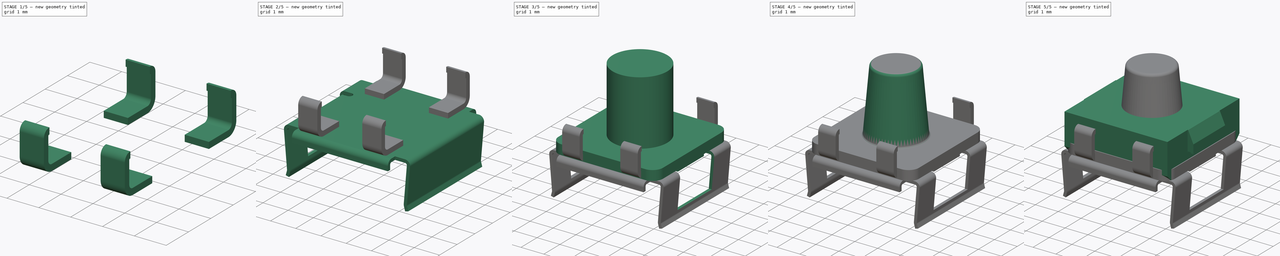
[diagram: build sequence overview — one tinted view per stage of 5, left to right]
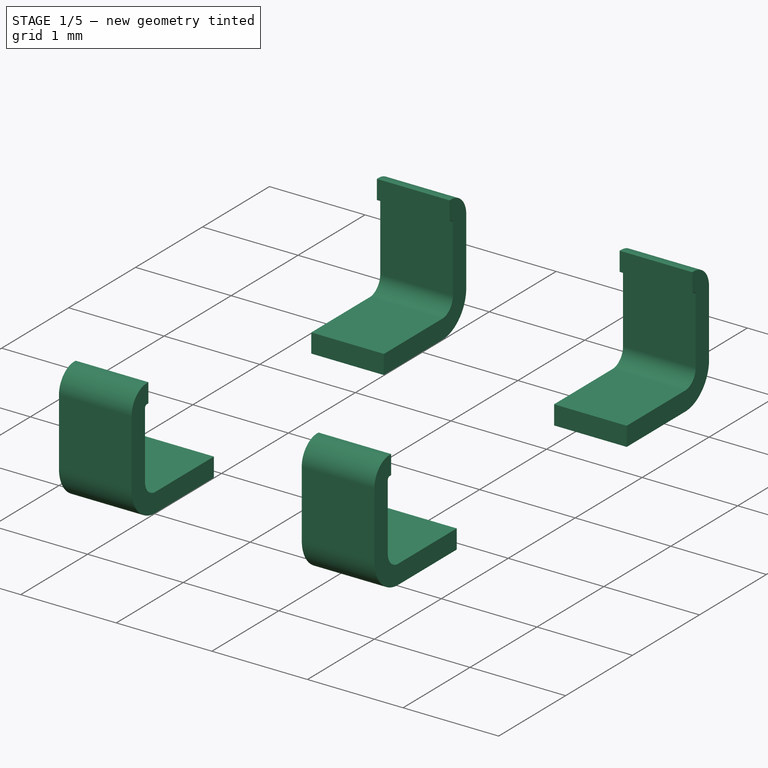
[diagram: stage 1 of 5 — iso view after this stage's code; geometry added in this stage tinted green]
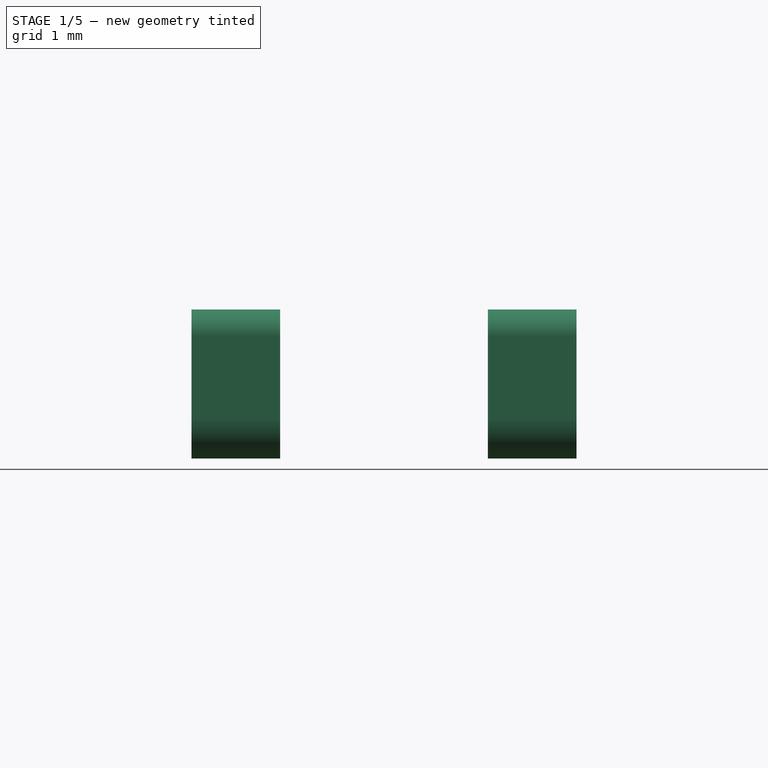
[diagram: stage 1 of 5 — front view after this stage's code; geometry added in this stage tinted green]
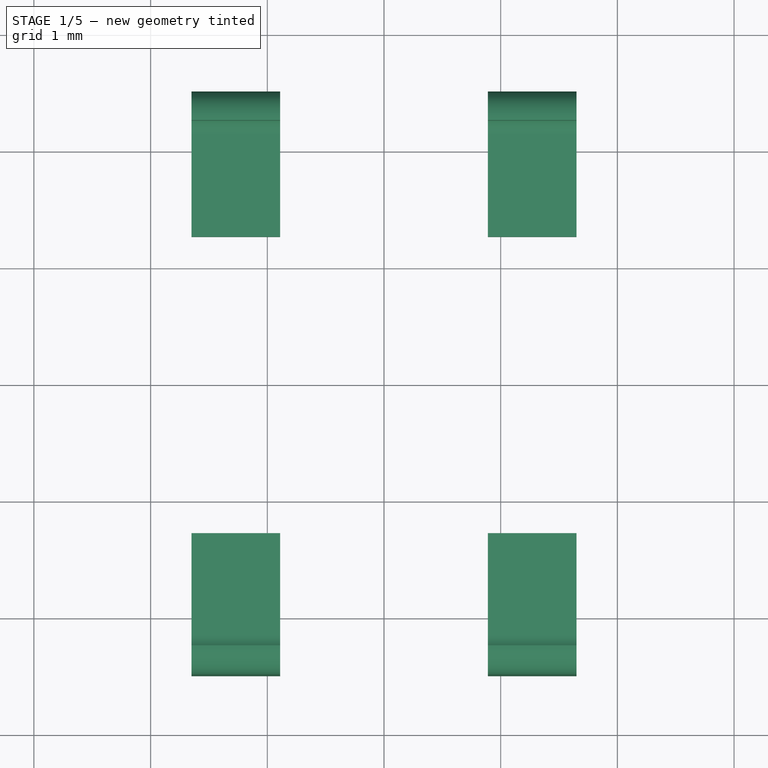
[diagram: stage 1 of 5 — top view after this stage's code; geometry added in this stage tinted green]
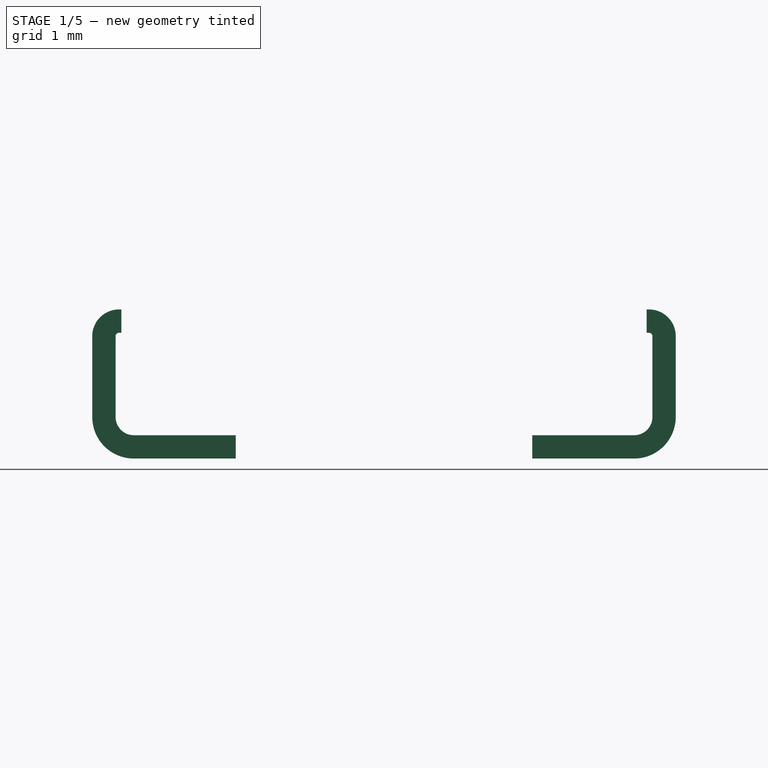
[diagram: stage 1 of 5 — right view after this stage's code; geometry added in this stage tinted green]
FCSTD DOCUMENT  (FreeCAD 1.0R38641 +468 (Git))
Label: 7914J-1-050
License: All rights reserved
LicenseURL: http://en.wikipedia.org/wiki/All_rights_reserved
objects: Sketcher::SketchObject×10, PartDesign::Pad×7, PartDesign::Body×4, PartDesign::Pocket×3, PartDesign::Mirrored×2, PartDesign::Fillet×2, Spreadsheet::Sheet×1, PartDesign::Draft×1, Part::FeaturePython×1, Part::Mirroring×1, Part::Compound×1
note: 69 computed .brp shape members not serialized (recipe doc carries the construction recipe); baked Part::Feature solids carry a one-line shape summary decoded from their .brp

FEATURE [PartDesign::Body] Body002  label="Cover"
  AllowCompound = false
  Group = -> [Sketch007,Pad004,Sketch008,Pad005,Sketch009,Pocket001,Mirrored001,Sketch010,Pocket002]
  Origin = -> Origin002
  Placement = pos=(0,0,2.54) rot=(0,0,1;0rad)
  Tip = -> Pocket002
FEATURE [Sketcher::SketchObject] Sketch011
  ArcFitTolerance = 0
  AttachmentSupport = -> [YZ_Plane003]
  FullyConstrained = true
  MakeInternals = false
  MapMode = 5
  Placement = pos=(0,0,0) rot=(0.57735,0.57735,0.57735;2.0944rad)
  expr: Constraints[50] = <<Master>>.body_y / 2
  expr: Constraints[53] = <<Master>>.dim_y / 2
  sketch-geometry (20):
    g0: LineSegment StartX=-1.27 StartY=0.2 StartZ=0 EndX=-1.27 EndY=6e-16 EndZ=0
    g1: LineSegment StartX=-1.27 StartY=6e-16 StartZ=0 EndX=-2.144 EndY=6e-16 EndZ=0
    g2: LineSegment StartX=-2.5 StartY=0.356 StartZ=0 EndX=-2.5 EndY=1.049 EndZ=0
    g3: LineSegment StartX=-2.2714 StartY=1.2776 StartZ=0 EndX=-2.25 EndY=1.2776 EndZ=0
    g4: LineSegment StartX=-2.25 StartY=1.2776 StartZ=0 EndX=-2.25 EndY=1.0776 EndZ=0
    g5: LineSegment StartX=-2.25 StartY=1.0776 StartZ=0 EndX=-2.2714 EndY=1.0776 EndZ=0
    g6: LineSegment StartX=-2.3 StartY=1.049 StartZ=0 EndX=-2.3 EndY=0.356 EndZ=0
    g7: LineSegment StartX=-2.144 StartY=0.2 StartZ=0 EndX=-1.27 EndY=0.2 EndZ=0
    g8: ArcOfCircle CenterX=-2.144 CenterY=0.356 CenterZ=0 NormalX=0 NormalY=0 NormalZ=1 AngleXU=0 Radius=0.356 StartAngle=3.14159 EndAngle=4.71239
    g9: ArcOfCircle CenterX=-2.144 CenterY=0.356 CenterZ=0 NormalX=0 NormalY=0 NormalZ=1 AngleXU=0 Radius=0.156 StartAngle=3.14159 EndAngle=4.71239
    g10: LineSegment [constr] StartX=-2.5 StartY=0.356 StartZ=0 EndX=-2.3 EndY=0.356 EndZ=0
    g11: LineSegment [constr] StartX=-2.144 StartY=0.2 StartZ=0 EndX=-2.144 EndY=6e-16 EndZ=0
    g12: ArcOfCircle CenterX=-2.2714 CenterY=1.049 CenterZ=0 NormalX=0 NormalY=0 NormalZ=1 AngleXU=0 Radius=0.2286 StartAngle=1.5708 EndAngle=3.14159
    g13: ArcOfCircle CenterX=-2.2714 CenterY=1.049 CenterZ=0 NormalX=0 NormalY=0 NormalZ=1 AngleXU=0 Radius=0.0286 StartAngle=1.5708 EndAngle=3.14159
    g14: LineSegment [constr] StartX=-2.2714 StartY=1.2776 StartZ=0 EndX=-2.2714 EndY=1.0776 EndZ=0
    g15: LineSegment [constr] StartX=-2.5 StartY=1.049 StartZ=0 EndX=-2.3 EndY=1.049 EndZ=0
    g16: LineSegment [constr] StartX=-2.3 StartY=0.356 StartZ=0 EndX=-2.144 EndY=0.356 EndZ=0
    g17: LineSegment [constr] StartX=-2.144 StartY=0.356 StartZ=0 EndX=-2.144 EndY=0.2 EndZ=0
    g18: LineSegment [constr] StartX=-2.3 StartY=1.049 StartZ=0 EndX=-2.2714 EndY=1.049 EndZ=0
    g19: LineSegment [constr] StartX=-2.2714 StartY=1.0776 StartZ=0 EndX=-2.2714 EndY=1.049 EndZ=0
  constraints (54):
    c: Vertical(g0)
    c: Coincident(g0,g1)
    c: Horizontal(g1)
    c: Vertical(g2)
    c: Horizontal(g3)
    c: Coincident(g3,g4)
    c: Vertical(g4)
    c: Coincident(g4,g5)
    c: Horizontal(g5)
    c: Vertical(g6)
    c: Horizontal(g7)
    c: Coincident(g0,g7)
    c: PointOnObject(g0,g-1)
    c: Coincident(g2,g8)
    c: Coincident(g1,g8)
    c: Coincident(g6,g9)
    c: Coincident(g7,g9)
    c: Coincident(g9,g8)
    c: Coincident(g10,g6)
    c: Horizontal(g10)
    c: Coincident(g11,g7)
    c: Coincident(g11,g1)
    c: Vertical(g11)
    c: Coincident(g2,g10)
    c: Coincident(g3,g12)
    c: Coincident(g2,g12)
    c: Coincident(g6,g13)
    c: Coincident(g5,g13)
    c: Coincident(g13,g12)
    c: Coincident(g14,g3)
    c: Coincident(g14,g5)
    c: Vertical(g14)
    c: Coincident(g15,g2)
    c: Coincident(g15,g6)
    c: Horizontal(g15)
    c: Coincident(g16,g6)
    c: Coincident(g16,g8)
    c: Horizontal(g16)
    c: Coincident(g17,g8)
    c: Coincident(g17,g7)
    c: Vertical(g17)
    c: Coincident(g18,g6)
    c: Coincident(g18,g12)
    c: Horizontal(g18)
    c: Coincident(g19,g5)
    c: Coincident(g19,g12)
    c: Vertical(g19)
    c: DistanceY(g2) = 0.693
    c: DistanceY(g2,g3) = 0.2286
    c: DistanceX(g2,g0) = 1.23
    c: DistanceX(g3,g-1) = 2.25
    c: DistanceY(g4,g4) = 0.2
    c: DistanceY(g1,g2) = 0.356
    c: DistanceX(g2,g-1) = 2.5
FEATURE [PartDesign::Pad] Pad006
  Direction = (1,0,0)
  Length = 0.38
  Length2 = 0.38
  Placement = pos=(0,0,0) rot=(1,1,1;2.0944rad)
  Profile = -> Sketch011
  ReferenceAxis = -> Sketch011 [N_Axis]
  Suppressed = false
  Type = 4
FEATURE [PartDesign::Body] Body003
  AllowCompound = false
  Group = -> [Sketch011,Pad006]
  Origin = -> Origin003
  Tip = -> Pad006
FEATURE [Part::FeaturePython] Array  # Draft array (typed FeaturePython)
  AlwaysSyncPlacement = false
  Angle = 360
  ArrayType = 0
  Axis = (0,0,1)
  Base = -> Body003
  Center = (0,0,0)
  Count = 2
  ExpandArray = false
  Fuse = false
  IntervalAxis = (0,0,0)
  IntervalX = (2.54,0,0)
  IntervalY = (0,100,0)
  IntervalZ = (0,0,100)
  NumberCircles = 3
  NumberPolar = 5
  NumberX = 2
  NumberY = 1
  NumberZ = 1
  Placement = pos=(-1.27,0,0) rot=(0,0,1;0rad)
  PlacementList = 2 placements: [(0,0,0),(2.54,0,0)]
  RadialDistance = 50
  ScaleList = (2) [(1,1,1),(1,1,1)]
  Symmetry = 1
  TangentialDistance = 25
FEATURE [Part::Mirroring] Part__Mirroring  label="Array (Mirror #1)"
  Base = (0,0,0)
  Normal = (0,1,0)
  Source = -> Array
FEATURE [Part::Compound] Compound
  Links = -> [Part__Mirroring,Array]
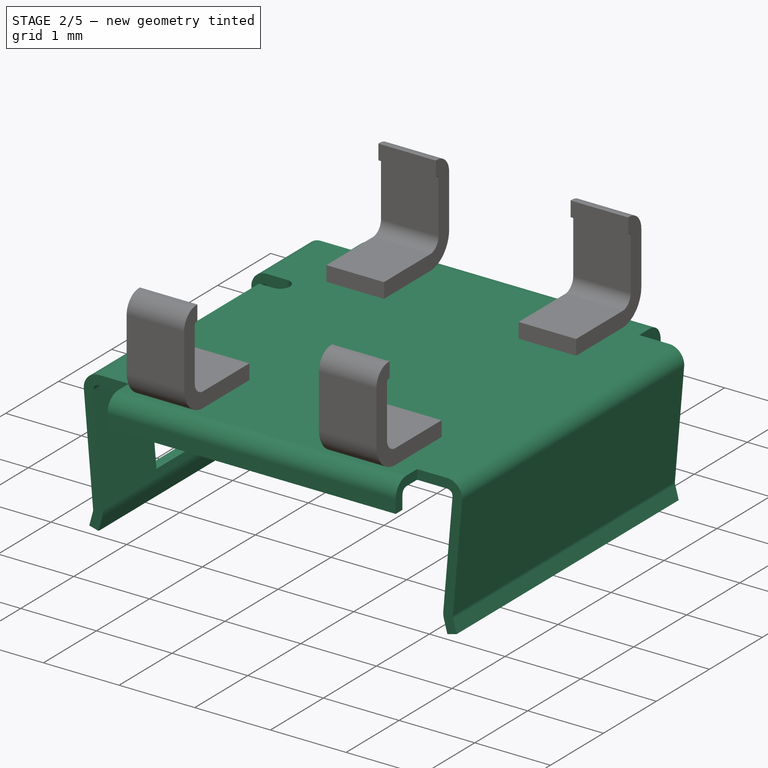
[diagram: stage 2 of 5 — iso view after this stage's code; geometry added in this stage tinted green]
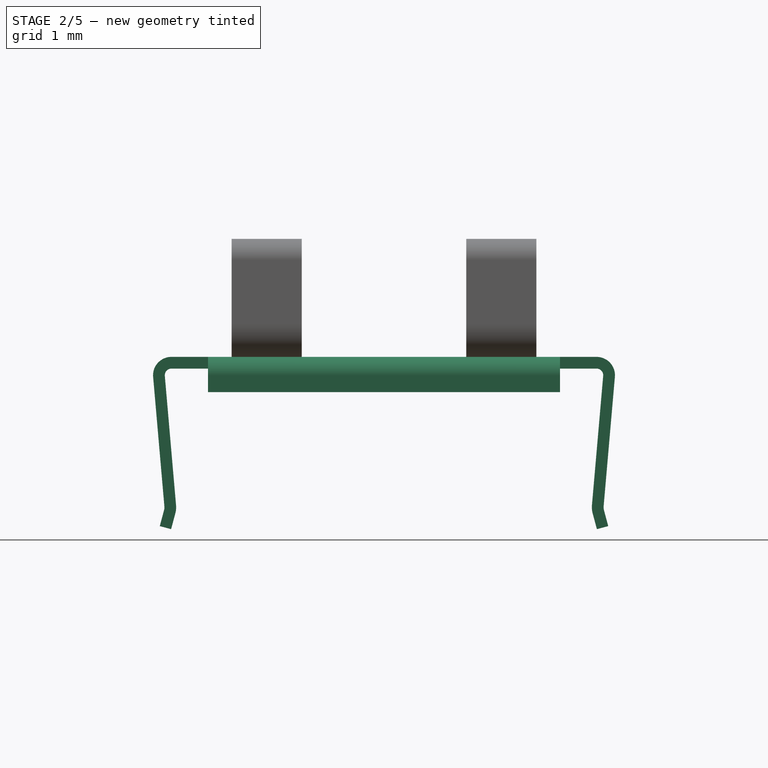
[diagram: stage 2 of 5 — front view after this stage's code; geometry added in this stage tinted green]
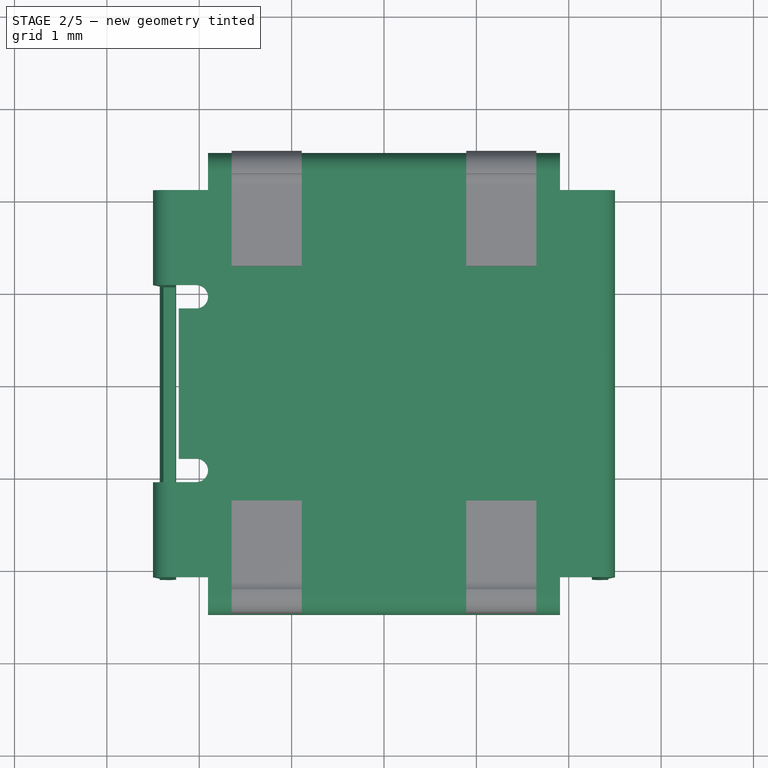
[diagram: stage 2 of 5 — top view after this stage's code; geometry added in this stage tinted green]
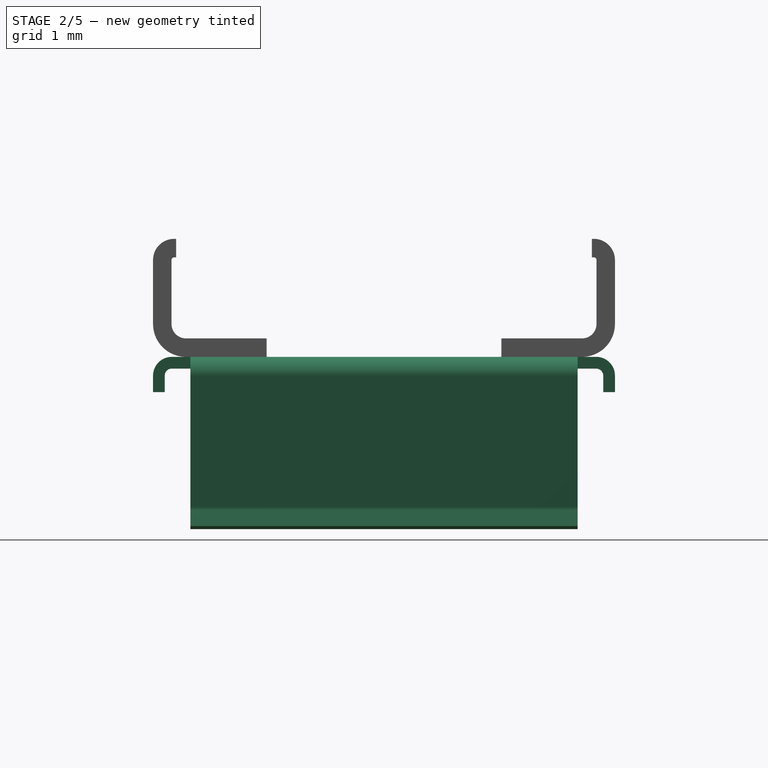
[diagram: stage 2 of 5 — right view after this stage's code; geometry added in this stage tinted green]
FEATURE [PartDesign::Body] Body001  label="Button"
  AllowCompound = false
  Group = -> [Sketch003,Pad002,Sketch004,Pad003,Draft,Fillet,Fillet001]
  Origin = -> Origin001
  Placement = pos=(0,0,1.887) rot=(0,0,1;0rad)
  Tip = -> Fillet001
FEATURE [Sketcher::SketchObject] Sketch007
  ArcFitTolerance = 0
  AttachmentSupport = -> [XZ_Plane002]
  FullyConstrained = true
  MakeInternals = false
  MapMode = 5
  Placement = pos=(0,0,0) rot=(1,0,0;1.5708rad)
  expr: Constraints[42] = <<Master>>.cover_thick
  expr: Constraints[65] = <<Master>>.body_x
  expr: Constraints[78] = <<Master>>.dim_x
  sketch-geometry (31):
    g0: LineSegment StartX=-2.25095 StartY=-1.60607 StartZ=0 EndX=-2.37273 EndY=-0.205003 EndZ=0
    g1: LineSegment StartX=-2.30121 StartY=-0.127 StartZ=0 EndX=2.30121 EndY=-0.127 EndZ=0
    g2: LineSegment StartX=2.37273 StartY=-0.205001 StartZ=0 EndX=2.25095 EndY=-1.60607 EndZ=0
    g3: LineSegment StartX=2.37748 StartY=-1.61706 StartZ=0 EndX=2.49925 EndY=-0.215998 EndZ=0
    g4: LineSegment StartX=2.30121 StartY=0 StartZ=0 EndX=-2.30121 EndY=0 EndZ=0
    g5: LineSegment StartX=-2.49925 StartY=-0.216 StartZ=0 EndX=-2.37748 EndY=-1.61706 EndZ=0
    g6: LineSegment StartX=-2.38135 StartY=-1.661 StartZ=0 EndX=-2.42727 EndY=-1.832 EndZ=0
    g7: LineSegment StartX=-2.42727 StartY=-1.832 StartZ=0 EndX=-2.30462 EndY=-1.86494 EndZ=0
    g8: LineSegment StartX=-2.30462 StartY=-1.86494 StartZ=0 EndX=-2.25869 EndY=-1.69394 EndZ=0
    g9: LineSegment StartX=2.25869 StartY=-1.69394 StartZ=0 EndX=2.30462 EndY=-1.86494 EndZ=0
    g10: LineSegment StartX=2.30462 StartY=-1.86494 StartZ=0 EndX=2.42727 EndY=-1.832 EndZ=0
    g11: LineSegment StartX=2.42727 StartY=-1.832 StartZ=0 EndX=2.38135 EndY=-1.661 EndZ=0
    g12: ArcOfCircle CenterX=-2.30121 CenterY=-0.198786 CenterZ=0 NormalX=0 NormalY=0 NormalZ=1 AngleXU=0 Radius=0.198786 StartAngle=1.5708 EndAngle=3.2283
    g13: ArcOfCircle CenterX=-2.30121 CenterY=-0.198786 CenterZ=0 NormalX=0 NormalY=0 NormalZ=1 AngleXU=0 Radius=0.071786 StartAngle=1.57081 EndAngle=3.22831
    g14: ArcOfCircle CenterX=2.30121 CenterY=-0.198786 CenterZ=0 NormalX=0 NormalY=0 NormalZ=1 AngleXU=0 Radius=0.198786 StartAngle=6.19649 EndAngle=7.85398
    g15: ArcOfCircle CenterX=2.30121 CenterY=-0.198786 CenterZ=0 NormalX=0 NormalY=0 NormalZ=1 AngleXU=0 Radius=0.071786 StartAngle=6.1965 EndAngle=7.85397
    g16: LineSegment [constr] StartX=-2.49925 StartY=-0.216 StartZ=0 EndX=-2.37273 EndY=-0.205003 EndZ=0
    g17: LineSegment [constr] StartX=-2.30121 StartY=0 StartZ=0 EndX=-2.30121 EndY=-0.127 EndZ=0
    g18: LineSegment [constr] StartX=2.30121 StartY=0 StartZ=0 EndX=2.30121 EndY=-0.127 EndZ=0
    g19: LineSegment [constr] StartX=2.37273 StartY=-0.205001 StartZ=0 EndX=2.49925 EndY=-0.215998 EndZ=0
    g20: LineSegment [constr] StartX=-2.30462 StartY=-1.86494 StartZ=0 EndX=2.30462 EndY=-1.86494 EndZ=0
    g21: LineSegment [constr] StartX=-2.30121 StartY=-0.198786 StartZ=0 EndX=2.30121 EndY=-0.198786 EndZ=0
    g22: ArcOfCircle CenterX=2.504 CenterY=-1.62806 CenterZ=0 NormalX=0 NormalY=0 NormalZ=1 AngleXU=0 Radius=0.254 StartAngle=3.05489 EndAngle=3.40396
    g23: ArcOfCircle CenterX=2.504 CenterY=-1.62806 CenterZ=0 NormalX=0 NormalY=0 NormalZ=1 AngleXU=0 Radius=0.127 StartAngle=3.05489 EndAngle=3.40396
    g24: ArcOfCircle CenterX=-2.504 CenterY=-1.62806 CenterZ=0 NormalX=0 NormalY=0 NormalZ=1 AngleXU=0 Radius=0.127 StartAngle=6.02082 EndAngle=6.36988
    g25: ArcOfCircle CenterX=-2.504 CenterY=-1.62806 CenterZ=0 NormalX=0 NormalY=0 NormalZ=1 AngleXU=0 Radius=0.254 StartAngle=6.02082 EndAngle=6.36988
    g26: LineSegment [constr] StartX=2.25 StartY=-1.62806 StartZ=0 EndX=2.25 EndY=-1.86494 EndZ=0
    g27: LineSegment [constr] StartX=-2.25 StartY=-1.62806 StartZ=0 EndX=-2.25 EndY=-1.86494 EndZ=0
    g28: LineSegment [constr] StartX=2.504 StartY=-1.62806 StartZ=0 EndX=-2.504 EndY=-1.62806 EndZ=0
    g29: LineSegment [constr] StartX=-2.5 StartY=0 StartZ=0 EndX=-2.5 EndY=-0.198786 EndZ=0
    g30: LineSegment [constr] StartX=2.5 StartY=-0.198786 StartZ=0 EndX=2.5 EndY=0 EndZ=0
  constraints (80):
    c: Horizontal(g1)
    c: Horizontal(g4)
    c: Coincident(g6,g7)
    c: Coincident(g7,g8)
    c: Coincident(g9,g10)
    c: Coincident(g10,g11)
    c: Parallel(g0,g5)
    c: Parallel(g6,g8)
    c: Perpendicular(g8,g7)
    c: Parallel(g2,g3)
    c: Parallel(g9,g11)
    c: Perpendicular(g9,g10)
    c: Coincident(g13,g12)
    c: Coincident(g4,g12)
    c: Coincident(g5,g12)
    c: Coincident(g0,g13)
    c: Coincident(g1,g13)
    c: Coincident(g15,g14)
    c: Coincident(g4,g14)
    c: Coincident(g3,g14)
    c: Coincident(g1,g15)
    c: Coincident(g2,g15)
    c: Coincident(g16,g5)
    c: Coincident(g16,g0)
    c: Perpendicular(g0,g16)
    c: Tangent(g5,g12)
    c: Coincident(g17,g4)
    c: Coincident(g17,g1)
    c: Vertical(g17)
    c: Coincident(g18,g4)
    c: Coincident(g18,g1)
    c: Vertical(g18)
    c: Coincident(g19,g2)
    c: Coincident(g19,g3)
    c: Tangent(g14,g3)
    c: Equal(g10,g19)
    c: Coincident(g20,g7)
    c: Coincident(g20,g9)
    c: Coincident(g21,g12)
    c: Coincident(g21,g14)
    c: Symmetric(g7,g9,g-2)
    c: DistanceY(g5,g4) = 0.216
    c: DistanceY(g17,g17) = 0.127
    c: DistanceY(g10,g4) = 1.832
    c: Tangent(g2,g22) = -1.5708
    c: Tangent(g9,g22) = -1.5708
    c: Tangent(g3,g23) = 1.5708
    c: Tangent(g11,g23) = 1.5708
    c: Tangent(g6,g24) = 1.5708
    c: Tangent(g5,g24) = 1.5708
    c: Tangent(g8,g25) = -1.5708
    c: Tangent(g0,g25) = -1.5708
    c: Coincident(g25,g24)
    c: Coincident(g22,g23)
    c: PointOnObject(g26,g20)
    c: Vertical(g26)
    c: Tangent(g26,g22) = -1.5708
    c: PointOnObject(g27,g20)
    c: Vertical(g27)
    c: Tangent(g27,g25) = 1.5708
    c: Angle(g5,g6) = 2.79253
    c: Angle(g11,g3) = 2.79253
    c: Coincident(g28,g22)
    c: Coincident(g28,g24)
    c: Horizontal(g28)
    c: DistanceX(g27,g26) = 4.5
    c: Equal(g25,g22)
    c: PointOnObject(g-1,g4)
    c: Equal(g16,g17)
    c: Radius(g25) = 0.254
    c: DistanceY(g27,g8) = 0.171
    c: Equal(g10,g7)
    c: PointOnObject(g29,g-1)
    c: Vertical(g29)
    c: PointOnObject(g30,g-1)
    c: Vertical(g30)
    c: Tangent(g30,g14) = -1.5708
    c: Tangent(g29,g12) = -1.5708
    c: DistanceX(g29,g30) = 5
    c: Symmetric(g12,g14,g-2)
FEATURE [PartDesign::Pad] Pad004
  Direction = (0,-1,2e-16)
  Length = 2.0955
  Length2 = 2.0955
  Placement = pos=(0,0,0) rot=(1,0,0;1.5708rad)
  Profile = -> Sketch007
  ReferenceAxis = -> Sketch007 [N_Axis]
  Suppressed = false
  Type = 4
  expr: Length = <<Master>>.cover_y / 2
  expr: Length2 = <<Master>>.cover_y / 2
FEATURE [Sketcher::SketchObject] Sketch008
  ArcFitTolerance = 0
  AttachmentSupport = -> [YZ_Plane002]
  FullyConstrained = true
  MakeInternals = false
  MapMode = 5
  Placement = pos=(0,0,0) rot=(0.57735,0.57735,0.57735;2.0944rad)
  expr: Constraints[30] = <<Master>>.cover_thick
  expr: Constraints[34] = <<Master>>.dim_y
  sketch-geometry (15):
    g0: LineSegment StartX=2.297 StartY=0 StartZ=0 EndX=-2.297 EndY=0 EndZ=0
    g1: LineSegment StartX=-2.5 StartY=-0.203 StartZ=0 EndX=-2.5 EndY=-0.381 EndZ=0
    g2: LineSegment StartX=-2.5 StartY=-0.381 StartZ=0 EndX=-2.373 EndY=-0.381 EndZ=0
    g3: LineSegment StartX=-2.373 StartY=-0.381 StartZ=0 EndX=-2.373 EndY=-0.203 EndZ=0
    g4: LineSegment StartX=-2.297 StartY=-0.127 StartZ=0 EndX=2.297 EndY=-0.127 EndZ=0
    g5: LineSegment StartX=2.373 StartY=-0.203 StartZ=0 EndX=2.373 EndY=-0.381 EndZ=0
    g6: LineSegment StartX=2.373 StartY=-0.381 StartZ=0 EndX=2.5 EndY=-0.381 EndZ=0
    g7: LineSegment StartX=2.5 StartY=-0.381 StartZ=0 EndX=2.5 EndY=-0.203 EndZ=0
    g8: ArcOfCircle CenterX=-2.297 CenterY=-0.203 CenterZ=0 NormalX=0 NormalY=0 NormalZ=1 AngleXU=0 Radius=0.203 StartAngle=1.5708 EndAngle=3.14159
    g9: ArcOfCircle CenterX=-2.297 CenterY=-0.203 CenterZ=0 NormalX=0 NormalY=0 NormalZ=1 AngleXU=0 Radius=0.076 StartAngle=1.5708 EndAngle=3.14159
    g10: ArcOfCircle CenterX=2.297 CenterY=-0.203 CenterZ=0 NormalX=0 NormalY=0 NormalZ=1 AngleXU=0 Radius=0.203 StartAngle=0 EndAngle=1.5708
    g11: ArcOfCircle CenterX=2.297 CenterY=-0.203 CenterZ=0 NormalX=0 NormalY=0 NormalZ=1 AngleXU=0 Radius=0.076 StartAngle=0 EndAngle=1.5708
    g12: LineSegment [constr] StartX=-2.297 StartY=0 StartZ=0 EndX=-2.297 EndY=-0.127 EndZ=0
    g13: LineSegment [constr] StartX=-2.297 StartY=-0.203 StartZ=0 EndX=2.297 EndY=-0.203 EndZ=0
    g14: LineSegment [constr] StartX=2.373 StartY=-0.381 StartZ=0 EndX=-2.373 EndY=-0.381 EndZ=0
  constraints (35):
    c: Horizontal(g0)
    c: Coincident(g1,g2)
    c: Coincident(g2,g3)
    c: Horizontal(g4)
    c: Vertical(g5)
    c: Coincident(g5,g6)
    c: Horizontal(g6)
    c: Coincident(g6,g7)
    c: Vertical(g1)
    c: Vertical(g3)
    c: Vertical(g7)
    c: Horizontal(g2)
    c: Tangent(g0,g8) = -1.5708
    c: Tangent(g1,g8) = -1.5708
    c: Tangent(g4,g9) = 1.5708
    c: Tangent(g3,g9) = 1.5708
    c: Tangent(g0,g10) = -1.5708
    c: Tangent(g7,g10) = -1.5708
    c: Tangent(g5,g11) = 1.5708
    c: Tangent(g4,g11) = 1.5708
    c: Coincident(g9,g8)
    c: Coincident(g10,g11)
    c: Coincident(g12,g0)
    c: Coincident(g12,g4)
    c: Coincident(g13,g8)
    c: Coincident(g13,g10)
    c: Horizontal(g13)
    c: Coincident(g14,g5)
    c: Coincident(g14,g2)
    c: DistanceY(g1,g0) = 0.381
    c: DistanceX(g2,g2) = 0.127
    c: DistanceY(g1,g0) = 0.203
    c: Symmetric(g2,g5,g-2)
    c: PointOnObject(g-1,g0)
    c: DistanceX(g1,g6) = 5
FEATURE [PartDesign::Pad] Pad005
  BaseFeature = -> Pad004
  Direction = (1,0,0)
  Length = 1.905
  Length2 = 1.905
  Placement = pos=(0,0,0) rot=(1,0,0;1.5708rad)
  Profile = -> Sketch008
  ReferenceAxis = -> Sketch008 [N_Axis]
  Suppressed = false
  Type = 4
  expr: Length = <<Master>>.cover_x / 2
  expr: Length2 = <<Master>>.cover_x / 2
FEATURE [Sketcher::SketchObject] Sketch009
  ArcFitTolerance = 0
  AttachmentSupport = -> [XY_Plane002]
  FullyConstrained = true
  MakeInternals = false
  MapMode = 5
  sketch-geometry (11):
    g0: LineSegment StartX=-2.722 StartY=1.067 StartZ=0 EndX=-2.032 EndY=1.067 EndZ=0
    g1: LineSegment StartX=-2.032 StartY=0.813 StartZ=0 EndX=-2.222 EndY=0.813 EndZ=0
    g2: LineSegment StartX=-2.222 StartY=0.813 StartZ=0 EndX=-2.222 EndY=-0.813 EndZ=0
    g3: LineSegment StartX=-2.222 StartY=-0.813 StartZ=0 EndX=-2.032 EndY=-0.813 EndZ=0
    g4: LineSegment StartX=-2.032 StartY=-1.067 StartZ=0 EndX=-2.722 EndY=-1.067 EndZ=0
    g5: LineSegment StartX=-2.722 StartY=-1.067 StartZ=0 EndX=-2.722 EndY=1.067 EndZ=0
    g6: ArcOfCircle CenterX=-2.032 CenterY=-0.94 CenterZ=0 NormalX=0 NormalY=0 NormalZ=1 AngleXU=0 Radius=0.127 StartAngle=4.71239 EndAngle=7.85398
    g7: ArcOfCircle CenterX=-2.032 CenterY=0.94 CenterZ=0 NormalX=0 NormalY=0 NormalZ=1 AngleXU=0 Radius=0.127 StartAngle=4.71239 EndAngle=7.85398
    g8: LineSegment [constr] StartX=-2.032 StartY=-0.813 StartZ=0 EndX=-2.032 EndY=0.813 EndZ=0
    g9: LineSegment [constr] StartX=-2.032 StartY=-1.067 StartZ=0 EndX=-2.032 EndY=-0.813 EndZ=0
    g10: LineSegment [constr] StartX=-2.032 StartY=0.813 StartZ=0 EndX=-2.032 EndY=1.067 EndZ=0
  constraints (31):
    c: Horizontal(g0)
    c: Horizontal(g1)
    c: Coincident(g1,g2)
    c: Coincident(g2,g3)
    c: Horizontal(g4)
    c: Coincident(g4,g5)
    c: Coincident(g5,g0)
    c: Vertical(g5)
    c: Horizontal(g3)
    c: Coincident(g6,g3)
    c: Coincident(g7,g0)
    c: Symmetric(g2,g1,g-1)
    c: Coincident(g7,g1)
    c: Coincident(g4,g6)
    c: Coincident(g8,g3)
    c: Coincident(g8,g1)
    c: Vertical(g8)
    c: DistanceY(g5) = 2.134
    c: Coincident(g9,g4)
    c: Coincident(g9,g3)
    c: Vertical(g9)
    c: PointOnObject(g6,g9)
    c: Coincident(g10,g1)
    c: Coincident(g10,g0)
    c: Vertical(g10)
    c: PointOnObject(g7,g10)
    c: Equal(g9,g10)
    c: DistanceY(g10) = 0.254
    c: DistanceX(g3) = 0.19
    c: DistanceX(g4,g2) = 0.5
    c: DistanceX(g1,g-1) = 2.222
FEATURE [PartDesign::Pocket] Pocket001
  BaseFeature = -> Pad005
  Direction = (0,0,-1)
  Length = 1.503
  Length2 = 5
  Placement = pos=(0,0,0) rot=(1,0,0;1.5708rad)
  Profile = -> Sketch009
  ReferenceAxis = -> Sketch009 [N_Axis]
  Suppressed = false
  Type = 0
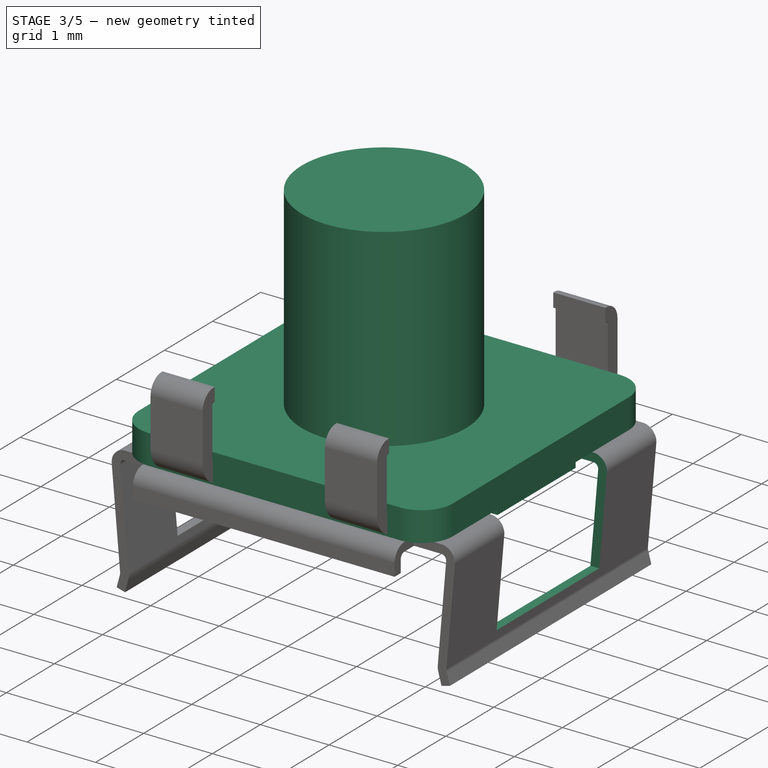
[diagram: stage 3 of 5 — iso view after this stage's code; geometry added in this stage tinted green]
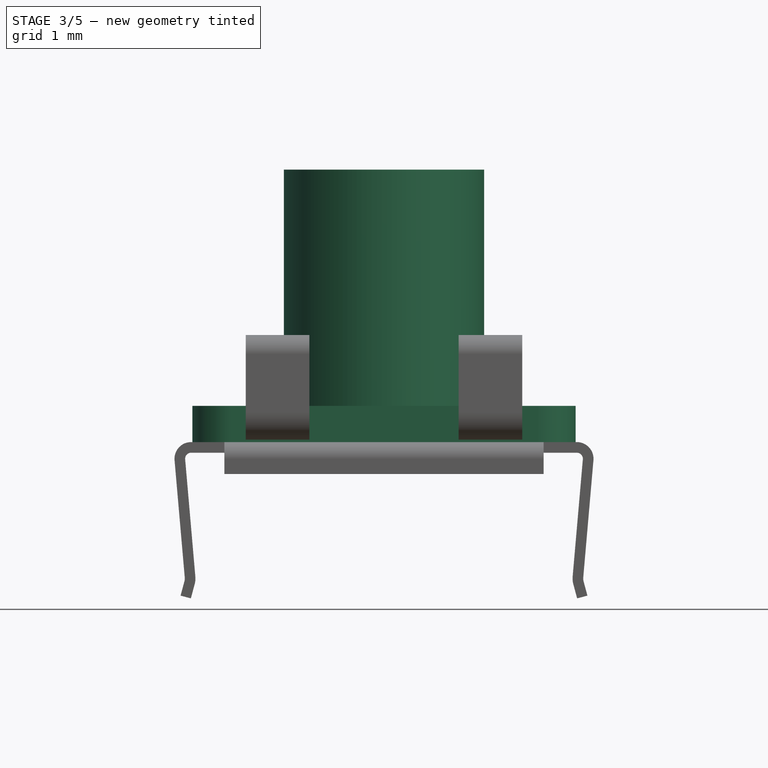
[diagram: stage 3 of 5 — front view after this stage's code; geometry added in this stage tinted green]
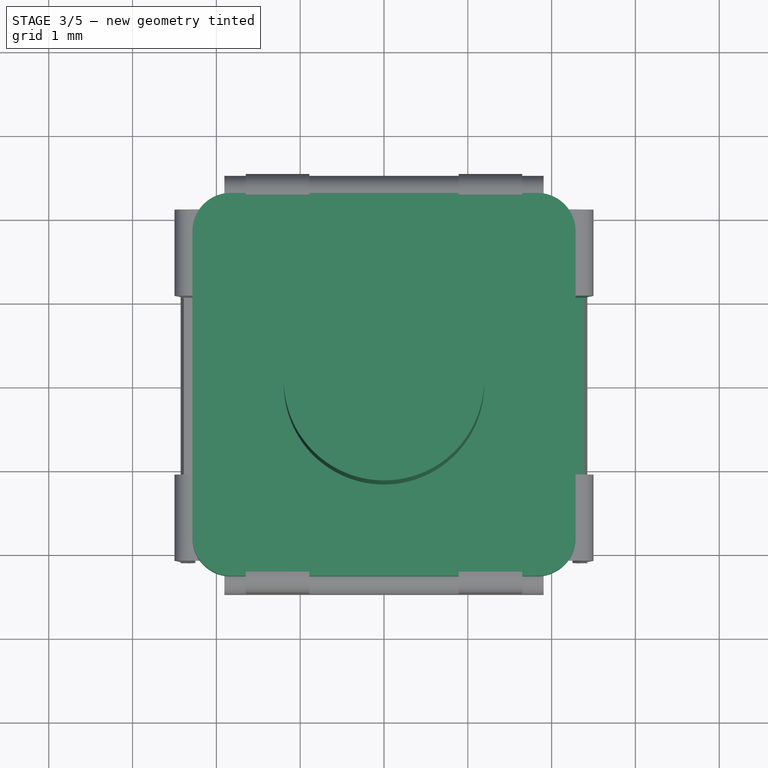
[diagram: stage 3 of 5 — top view after this stage's code; geometry added in this stage tinted green]
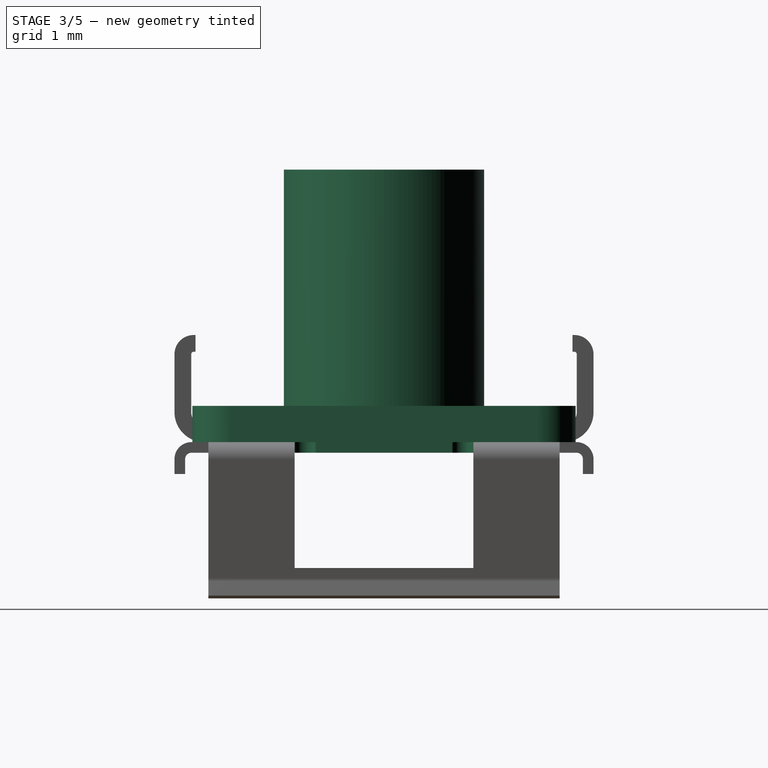
[diagram: stage 3 of 5 — right view after this stage's code; geometry added in this stage tinted green]
FEATURE [PartDesign::Body] Body
  AllowCompound = false
  Group = -> [Sketch001,Pad,Sketch,Pad001,Mirrored,Sketch002,Pocket]
  Origin = -> Origin
  Placement = pos=(0,0,0.287) rot=(0,0,1;0rad)
  Tip = -> Pocket
FEATURE [Sketcher::SketchObject] Sketch003
  ArcFitTolerance = 0
  AttachmentSupport = -> [XY_Plane001]
  FullyConstrained = true
  MakeInternals = false
  MapMode = 5
  sketch-geometry (10):
    g0: ArcOfCircle CenterX=-1.829 CenterY=1.829 CenterZ=0 NormalX=0 NormalY=0 NormalZ=1 AngleXU=0 Radius=0.457 StartAngle=1.5708 EndAngle=3.14159
    g1: LineSegment StartX=-1.829 StartY=2.286 StartZ=0 EndX=1.829 EndY=2.286 EndZ=0
    g2: ArcOfCircle CenterX=1.829 CenterY=1.829 CenterZ=0 NormalX=0 NormalY=0 NormalZ=1 AngleXU=0 Radius=0.457 StartAngle=1e-16 EndAngle=1.5708
    g3: LineSegment StartX=2.286 StartY=1.829 StartZ=0 EndX=2.286 EndY=-1.829 EndZ=0
    g4: ArcOfCircle CenterX=1.829 CenterY=-1.829 CenterZ=0 NormalX=0 NormalY=0 NormalZ=1 AngleXU=0 Radius=0.457 StartAngle=4.71239 EndAngle=6.28319
    g5: LineSegment StartX=1.829 StartY=-2.286 StartZ=0 EndX=-1.829 EndY=-2.286 EndZ=0
    g6: ArcOfCircle CenterX=-1.829 CenterY=-1.829 CenterZ=0 NormalX=0 NormalY=0 NormalZ=1 AngleXU=0 Radius=0.457 StartAngle=3.14159 EndAngle=4.71239
    g7: LineSegment StartX=-2.286 StartY=-1.829 StartZ=0 EndX=-2.286 EndY=1.829 EndZ=0
    g8: GeomPoint [constr] X=-2.286 Y=2.286 Z=0
    g9: GeomPoint [constr] X=2.286 Y=-2.286 Z=0
  constraints (22):
    c: Tangent(g0,g1) = 1.5708
    c: Tangent(g1,g2) = 1.5708
    c: Tangent(g2,g3) = 1.5708
    c: Tangent(g3,g4) = 1.5708
    c: Tangent(g4,g5) = 1.5708
    c: Tangent(g5,g6) = 1.5708
    c: Tangent(g6,g7) = 1.5708
    c: Tangent(g7,g0) = 1.5708
    c: Horizontal(g5)
    c: Vertical(g7)
    c: Equal(g0,g2)
    c: Equal(g2,g4)
    c: Equal(g4,g6)
    c: PointOnObject(g8,g1)
    c: PointOnObject(g8,g7)
    c: PointOnObject(g9,g3)
    c: PointOnObject(g9,g5)
    c: Radius(g0) = 0.457
    c: Symmetric(g0,g1,g-2)
    c: Symmetric(g2,g3,g-1)
    c: Equal(g1,g3)
    c: DistanceY(g4,g1) = 4.572
FEATURE [PartDesign::Pad] Pad002
  Direction = (0,0,1)
  Length = 0.4318
  Length2 = 10
  Profile = -> Sketch003
  ReferenceAxis = -> Sketch003 [N_Axis]
  Suppressed = false
  Type = 0
FEATURE [Sketcher::SketchObject] Sketch004
  ArcFitTolerance = 0
  AttachmentSupport = -> [XY_Plane001]
  FullyConstrained = true
  MakeInternals = false
  MapMode = 5
  sketch-geometry (1):
    g0: Circle CenterX=0 CenterY=0 CenterZ=0 NormalX=0 NormalY=0 NormalZ=1 AngleXU=0 Radius=1.195
  constraints (2):
    c: Coincident(g0,g-1)
    c: Radius(g0) = 1.195
FEATURE [PartDesign::Pad] Pad003
  BaseFeature = -> Pad002
  Direction = (0,0,1)
  Length = 3.2512
  Length2 = 10
  Profile = -> Sketch004
  ReferenceAxis = -> Sketch004 [N_Axis]
  Suppressed = false
  Type = 0
FEATURE [PartDesign::Mirrored] Mirrored001
  BaseFeature = -> Pocket001
  MirrorPlane = -> Sketch009 [V_Axis]
  Originals = -> [Pocket001]
  Placement = pos=(0,0,0) rot=(1,0,0;1.5708rad)
  Suppressed = false
  TransformMode = 0
FEATURE [Sketcher::SketchObject] Sketch010
  ArcFitTolerance = 0
  AttachmentSupport = -> [XY_Plane002]
  FullyConstrained = true
  MakeInternals = false
  MapMode = 5
  sketch-geometry (1):
    g0: Circle CenterX=0 CenterY=0 CenterZ=0 NormalX=0 NormalY=0 NormalZ=1 AngleXU=0 Radius=1.295
  constraints (2):
    c: Coincident(g0,g-1)
    c: Radius(g0) = 1.295
FEATURE [PartDesign::Pocket] Pocket002
  BaseFeature = -> Mirrored001
  Direction = (0,0,-1)
  Length = 5
  Length2 = 5
  Placement = pos=(0,0,0) rot=(1,0,0;1.5708rad)
  Profile = -> Sketch010
  ReferenceAxis = -> Sketch010 [N_Axis]
  Refine = true
  Suppressed = false
  Type = 1
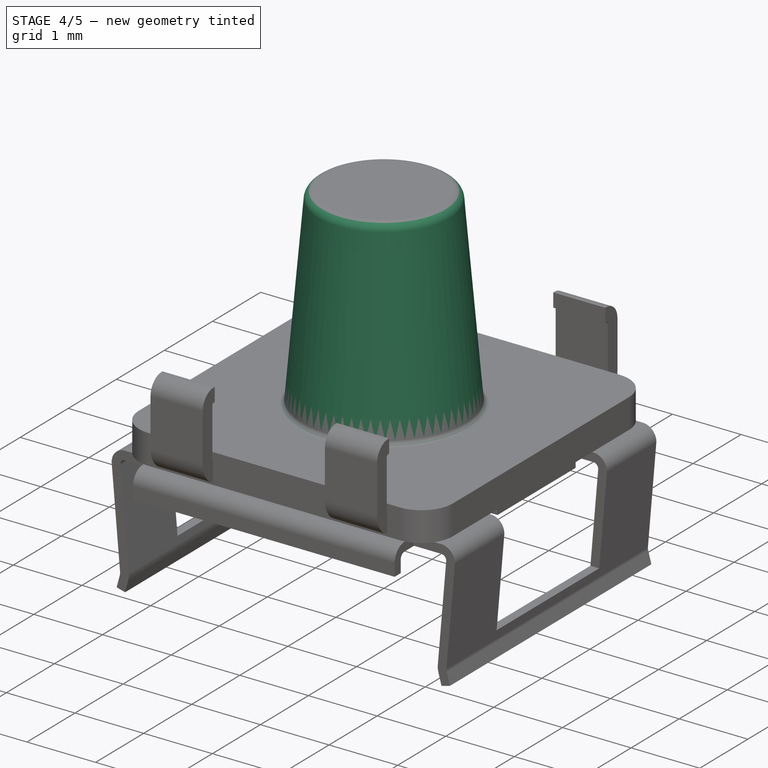
[diagram: stage 4 of 5 — iso view after this stage's code; geometry added in this stage tinted green]
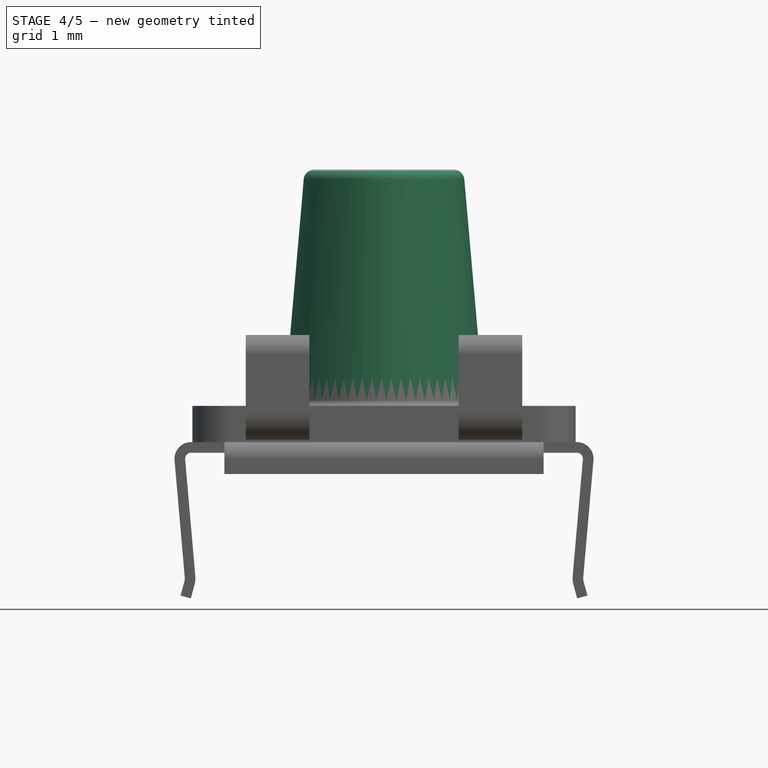
[diagram: stage 4 of 5 — front view after this stage's code; geometry added in this stage tinted green]
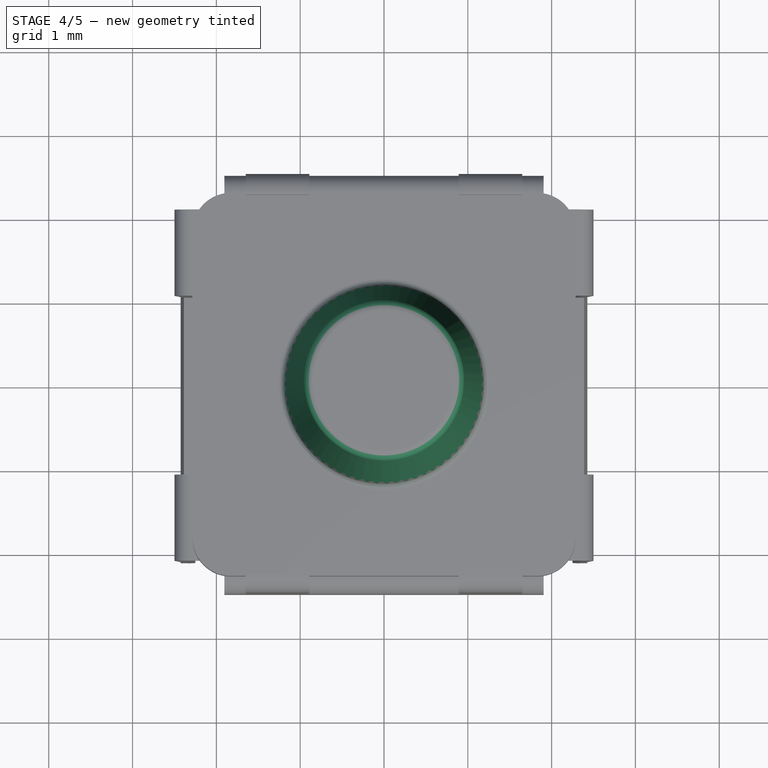
[diagram: stage 4 of 5 — top view after this stage's code; geometry added in this stage tinted green]
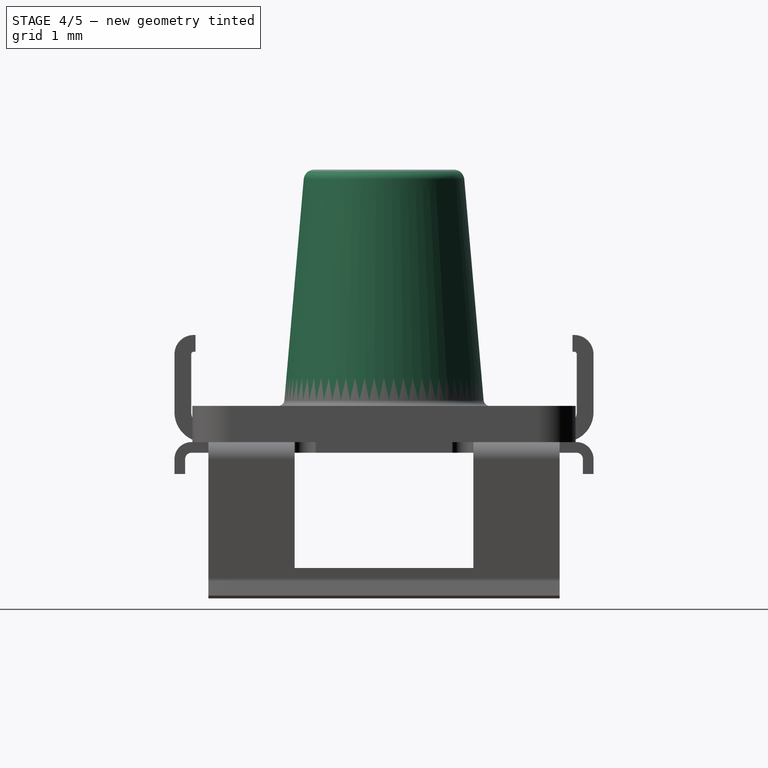
[diagram: stage 4 of 5 — right view after this stage's code; geometry added in this stage tinted green]
FEATURE [PartDesign::Draft] Draft
  Angle = 5
  Base = -> Pad003 [Face12]
  BaseFeature = -> Pad003
  Reversed = true
  SupportTransform = false
  Suppressed = false
FEATURE [PartDesign::Fillet] Fillet
  Base = -> Draft [Edge28]
  BaseFeature = -> Draft
  Radius = 0.127
  SupportTransform = false
  Suppressed = false
  UseAllEdges = false
FEATURE [PartDesign::Fillet] Fillet001
  Base = -> Fillet [Edge3]
  BaseFeature = -> Fillet
  Radius = 0.076
  SupportTransform = false
  Suppressed = false
  UseAllEdges = false
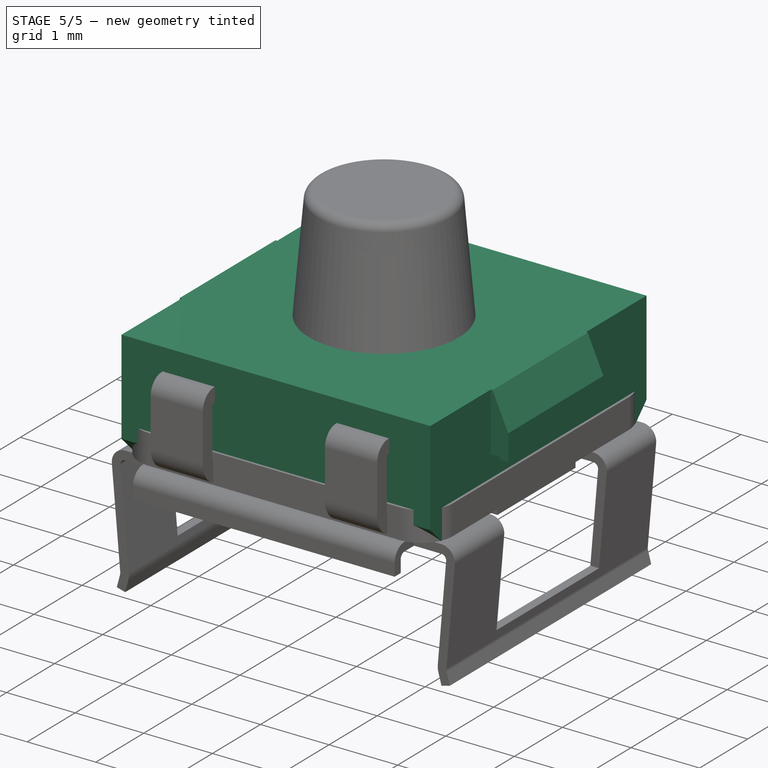
[diagram: stage 5 of 5 — iso view after this stage's code; geometry added in this stage tinted green]
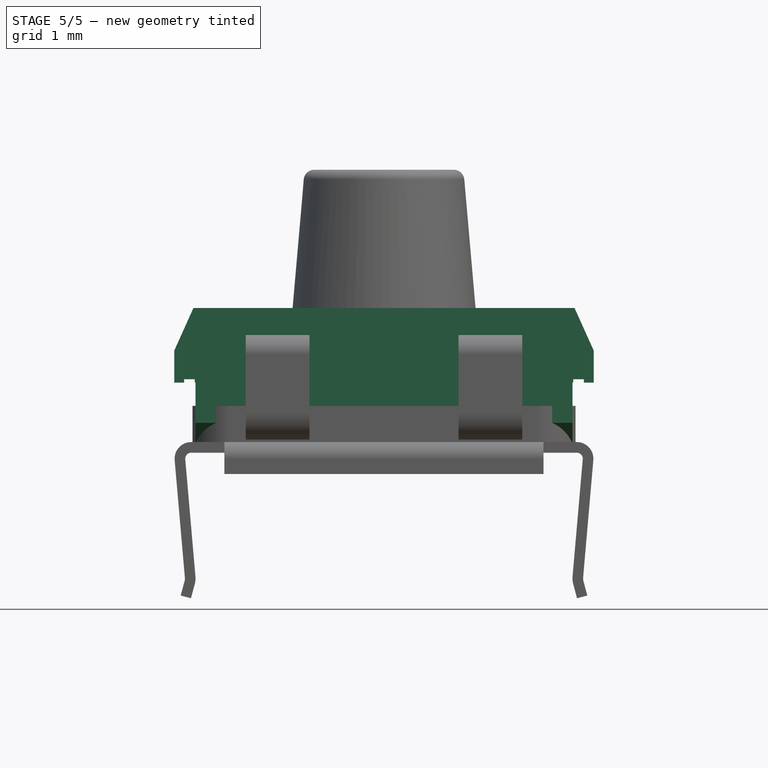
[diagram: stage 5 of 5 — front view after this stage's code; geometry added in this stage tinted green]
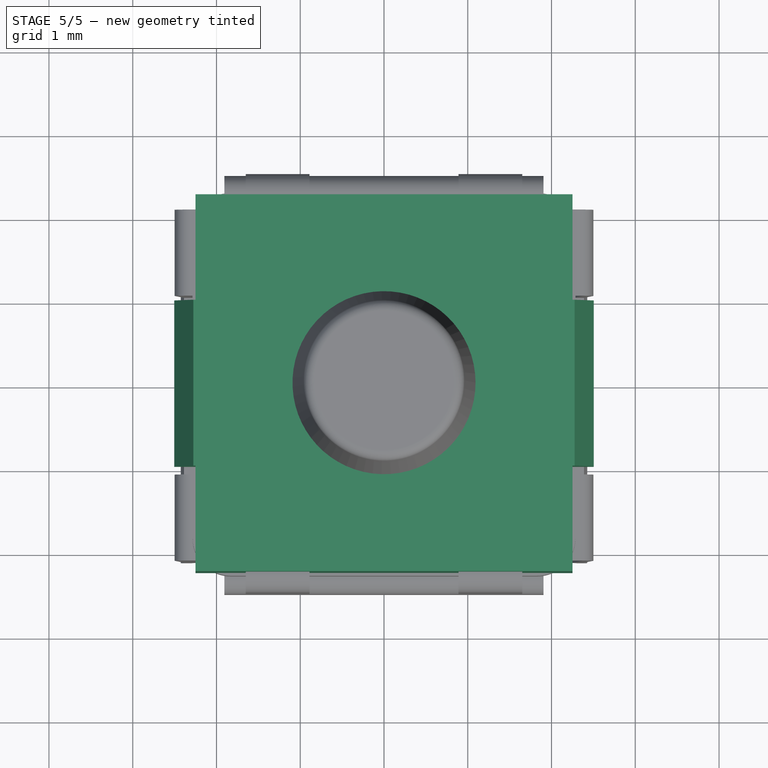
[diagram: stage 5 of 5 — top view after this stage's code; geometry added in this stage tinted green]
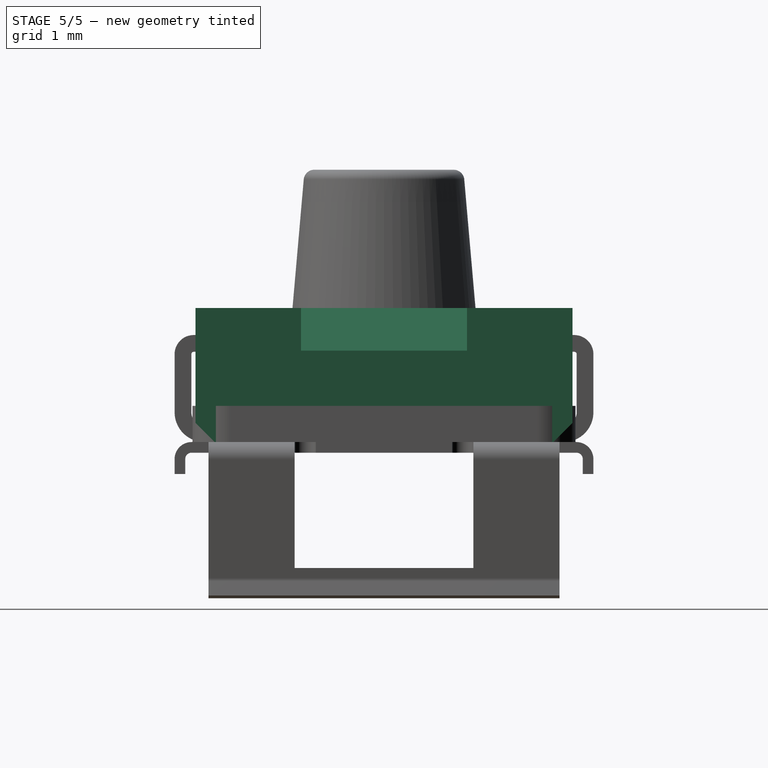
[diagram: stage 5 of 5 — right view after this stage's code; geometry added in this stage tinted green]
FEATURE [Spreadsheet::Sheet] Spreadsheet  label="Master"
  cells = A1='Overall Constants; A2='dim x; B2(dim_x)==5 mm; C2='Overall length; A3='dim y; B3(dim_y)==5 mm; C3='Overall width; A4='Body Constants; A5='body x; B5(body_x)==4.5 mm; C5='Length of housing; A6='body y; B6(body_y)==4.5 mm; C6='Width of housing; A7='body z; B7(body_z)==1.6 mm; C7='Height of housing; A8='clip y; B8(clip_y)==0.078 in; C8='Width of cover clip; A9='Cover Constants; A10='cover x; B10(cover_x)==3.81 mm; C10='Length of cover ex corner; A11='cover y; B11(cover_y)==4.191 mm; C11='Width of cover ex corner; A12='cover thick; B12(cover_thick)==0.127 mm; C12='Cover metal thickness
FEATURE [Sketcher::SketchObject] Sketch001
  ArcFitTolerance = 0
  AttachmentSupport = -> [YZ_Plane]
  FullyConstrained = true
  MakeInternals = false
  MapMode = 5
  Placement = pos=(0,0,0) rot=(0.57735,0.57735,0.57735;2.0944rad)
  expr: Constraints[25] = <<Master>>.body_z
  expr: Constraints[5] = <<Master>>.body_y
  sketch-geometry (10):
    g0: LineSegment StartX=-2.25 StartY=1.6 StartZ=0 EndX=2.25 EndY=1.6 EndZ=0
    g1: LineSegment StartX=2.25 StartY=1.6 StartZ=0 EndX=2.25 EndY=0.2286 EndZ=0
    g2: LineSegment StartX=2.0214 StartY=0 StartZ=0 EndX=-2.0214 EndY=0 EndZ=0
    g3: LineSegment StartX=-2.25 StartY=0.2286 StartZ=0 EndX=-2.25 EndY=1.6 EndZ=0
    g4: LineSegment StartX=-2.25 StartY=0.2286 StartZ=0 EndX=-2.0214 EndY=0 EndZ=0
    g5: LineSegment StartX=2.0214 StartY=0 StartZ=0 EndX=2.25 EndY=0.2286 EndZ=0
    g6: LineSegment [constr] StartX=2.25 StartY=0.2286 StartZ=0 EndX=2.25 EndY=0 EndZ=0
    g7: LineSegment [constr] StartX=2.25 StartY=0 StartZ=0 EndX=2.0214 EndY=0 EndZ=0
    g8: LineSegment [constr] StartX=-2.25 StartY=0.2286 StartZ=0 EndX=-2.25 EndY=0 EndZ=0
    g9: LineSegment [constr] StartX=-2.25 StartY=0 StartZ=0 EndX=-2.0214 EndY=0 EndZ=0
  constraints (27):
    c: Coincident(g0,g1)
    c: Coincident(g3,g0)
    c: Horizontal(g2)
    c: Vertical(g1)
    c: Vertical(g3)
    c: DistanceX(g0) = 4.5
    c: Symmetric(g0,g0,g-2)
    c: Coincident(g1,g5)
    c: Coincident(g2,g5)
    c: Coincident(g3,g4)
    c: Coincident(g2,g4)
    c: Coincident(g1,g6)
    c: Vertical(g6)
    c: Coincident(g6,g7)
    c: Coincident(g7,g2)
    c: Coincident(g3,g8)
    c: Vertical(g8)
    c: Coincident(g8,g9)
    c: Coincident(g9,g2)
    c: Horizontal(g9)
    c: Horizontal(g7)
    c: Equal(g8,g9)
    c: Equal(g9,g7)
    c: Equal(g7,g6)
    c: DistanceY(g6,g6) = 0.2286
    c: DistanceY(g6,g0) = 1.6
    c: PointOnObject(g-1,g2)
FEATURE [PartDesign::Pad] Pad
  Direction = (1,0,0)
  Length = 2.25
  Length2 = 2.25
  Placement = pos=(0,0,0) rot=(1,1,1;2.0944rad)
  Profile = -> Sketch001
  ReferenceAxis = -> Sketch001 [N_Axis]
  Suppressed = false
  Type = 4
  expr: Length = <<Master>>.body_x / 2
  expr: Length2 = <<Master>>.body_x / 2
FEATURE [Sketcher::SketchObject] Sketch
  ArcFitTolerance = 0
  AttachmentSupport = -> [XZ_Plane]
  FullyConstrained = true
  MakeInternals = false
  MapMode = 5
  Placement = pos=(0,0,0) rot=(1,0,0;1.5708rad)
  expr: Constraints[20] = <<Master>>.body_x / 2
  expr: Constraints[21] = <<Master>>.body_z
  sketch-geometry (10):
    g0: LineSegment StartX=2.25 StartY=1.6 StartZ=0 EndX=2.2754 EndY=1.6 EndZ=0
    g1: LineSegment StartX=2.2754 StartY=1.6 StartZ=0 EndX=2.504 EndY=1.092 EndZ=0
    g2: LineSegment StartX=2.504 StartY=0.71 StartZ=0 EndX=2.386 EndY=0.71 EndZ=0
    g3: LineSegment StartX=2.386 StartY=0.71 StartZ=0 EndX=2.386 EndY=0.75 EndZ=0
    g4: LineSegment StartX=2.386 StartY=0.75 StartZ=0 EndX=2.259 EndY=0.75 EndZ=0
    g5: LineSegment StartX=2.259 StartY=0.75 StartZ=0 EndX=2.259 EndY=0.71 EndZ=0
    g6: LineSegment StartX=2.259 StartY=0.71 StartZ=0 EndX=2.25 EndY=0.71 EndZ=0
    g7: LineSegment StartX=2.25 StartY=0.71 StartZ=0 EndX=2.25 EndY=1.6 EndZ=0
    g8: LineSegment [constr] StartX=2.259 StartY=0.71 StartZ=0 EndX=2.386 EndY=0.71 EndZ=0
    g9: LineSegment StartX=2.504 StartY=1.092 StartZ=0 EndX=2.504 EndY=0.71 EndZ=0
  constraints (29):
    c: Horizontal(g0)
    c: Coincident(g0,g1)
    c: Horizontal(g2)
    c: Coincident(g2,g3)
    c: Coincident(g3,g4)
    c: Horizontal(g4)
    c: Coincident(g4,g5)
    c: Vertical(g5)
    c: Coincident(g5,g6)
    c: Horizontal(g6)
    c: Coincident(g6,g7)
    c: Coincident(g7,g0)
    c: Vertical(g7)
    c: Vertical(g3)
    c: Coincident(g8,g5)
    c: Coincident(g8,g2)
    c: Horizontal(g8)
    c: Coincident(g9,g1)
    c: Coincident(g9,g2)
    c: Vertical(g9)
    c: DistanceX(g-1,g0) = 2.25
    c: DistanceY(g-1,g0) = 1.6
    c: DistanceX(g6,g2) = 0.254
    c: DistanceX(g2,g2) = 0.118
    c: DistanceX(g4,g4) = 0.127
    c: DistanceY(g3,g3) = 0.04
    c: DistanceY(g1,g0) = 0.508
    c: DistanceX(g0,g0) = 0.0254
    c: DistanceY(g7,g7) = 0.89
FEATURE [PartDesign::Pad] Pad001
  BaseFeature = -> Pad
  Direction = (0,-1,2e-16)
  Length = 0.9906
  Length2 = 0.9906
  Placement = pos=(0,0,0) rot=(1,1,1;2.0944rad)
  Profile = -> Sketch
  ReferenceAxis = -> Sketch [N_Axis]
  Suppressed = false
  Type = 4
  expr: Length = <<Master>>.clip_y / 2
  expr: Length2 = <<Master>>.clip_y / 2
FEATURE [PartDesign::Mirrored] Mirrored
  BaseFeature = -> Pad001
  MirrorPlane = -> Sketch [V_Axis]
  Originals = -> [Pad001]
  Placement = pos=(0,0,0) rot=(1,1,1;2.0944rad)
  Suppressed = false
  TransformMode = 0
FEATURE [Sketcher::SketchObject] Sketch002
  ArcFitTolerance = 0
  AttachmentSupport = -> [XY_Plane]
  FullyConstrained = true
  MakeInternals = false
  MapMode = 5
  sketch-geometry (1):
    g0: Circle CenterX=0 CenterY=0 CenterZ=0 NormalX=0 NormalY=0 NormalZ=1 AngleXU=0 Radius=0.635
  constraints (2):
    c: Coincident(g0,g-1)
    c: Diameter(g0) = 1.27
FEATURE [PartDesign::Pocket] Pocket
  BaseFeature = -> Mirrored
  Direction = (0,0,-1)
  Length = 0.254
  Length2 = 5
  Placement = pos=(0,0,0) rot=(1,1,1;2.0944rad)
  Profile = -> Sketch002
  ReferenceAxis = -> Sketch002 [N_Axis]
  Refine = true
  Reversed = true
  Suppressed = false
  Type = 0
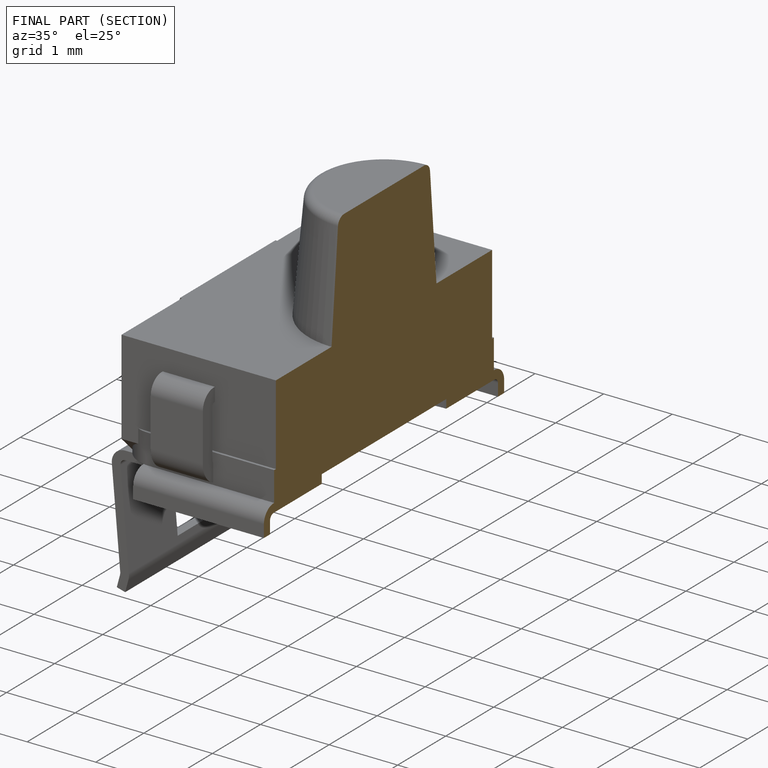
[diagram: finished part — half-section view (interior)]
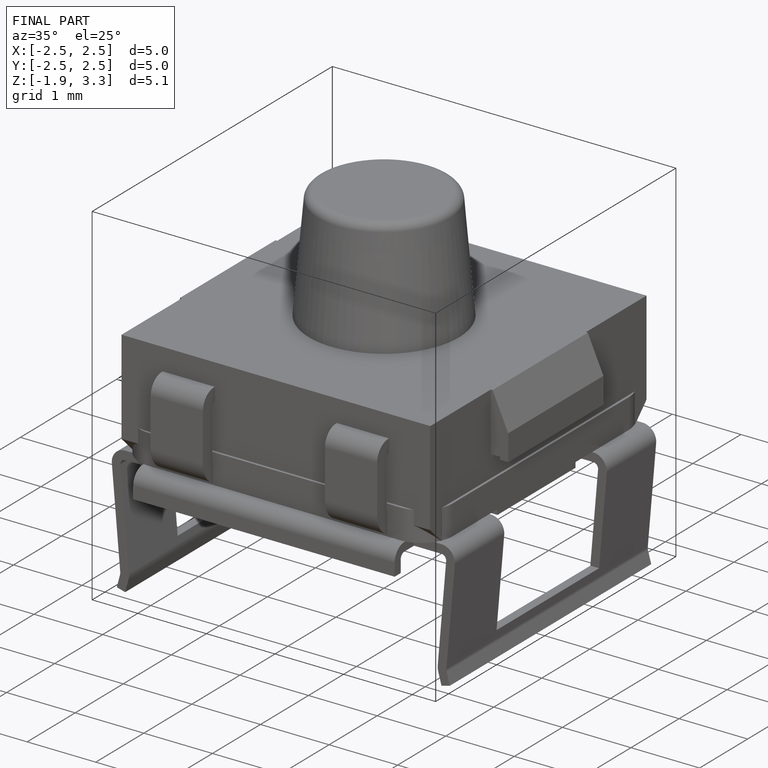
[diagram: finished part — iso view with bounding-box wireframe]
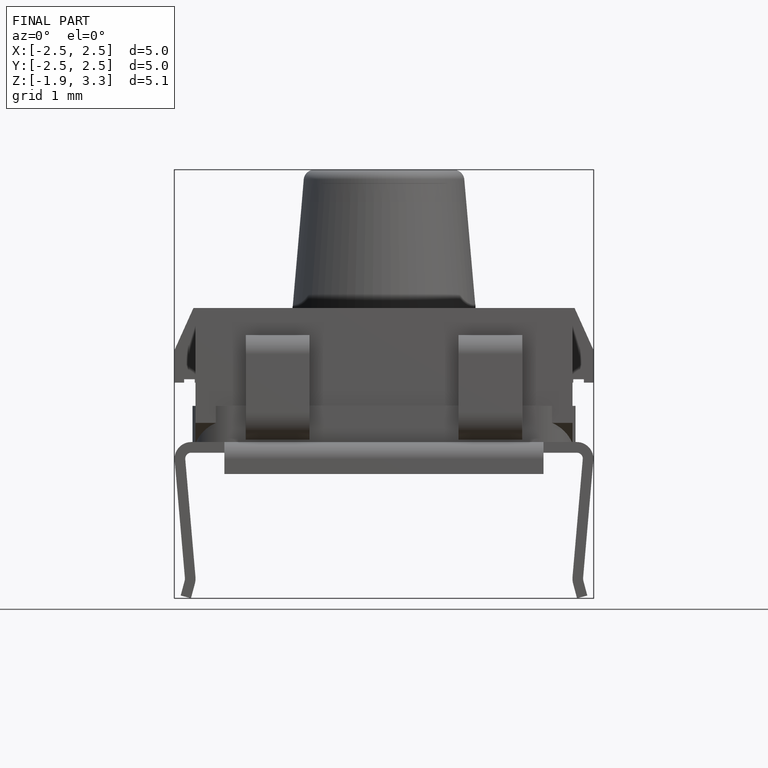
[diagram: finished part — front view with bounding-box wireframe]
